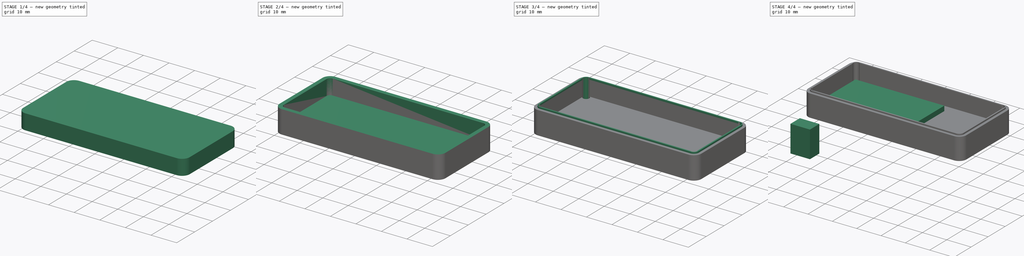
[diagram: build sequence overview — one tinted view per stage of 4, left to right]
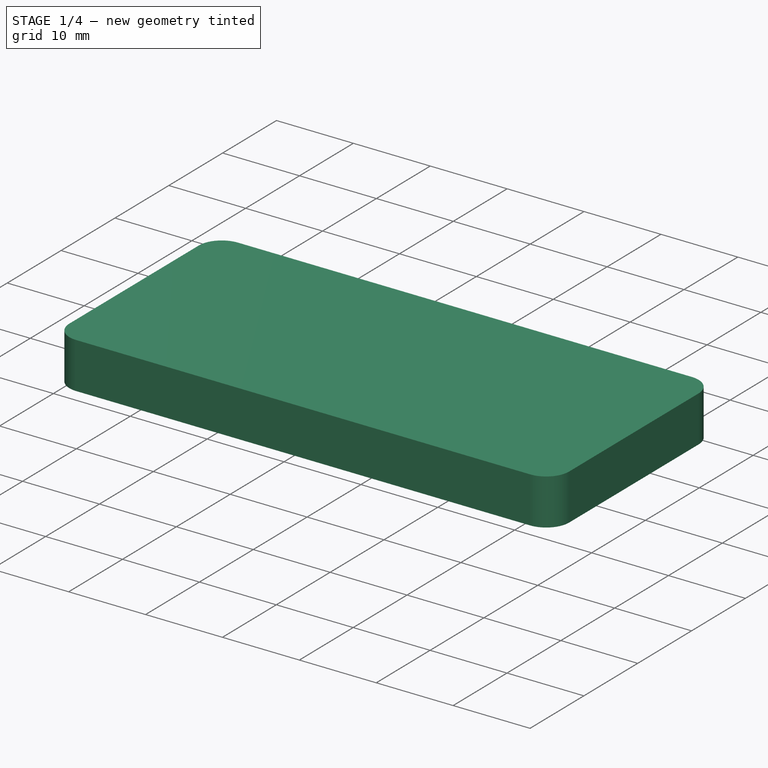
[diagram: stage 1 of 4 — iso view after this stage's code; geometry added in this stage tinted green]
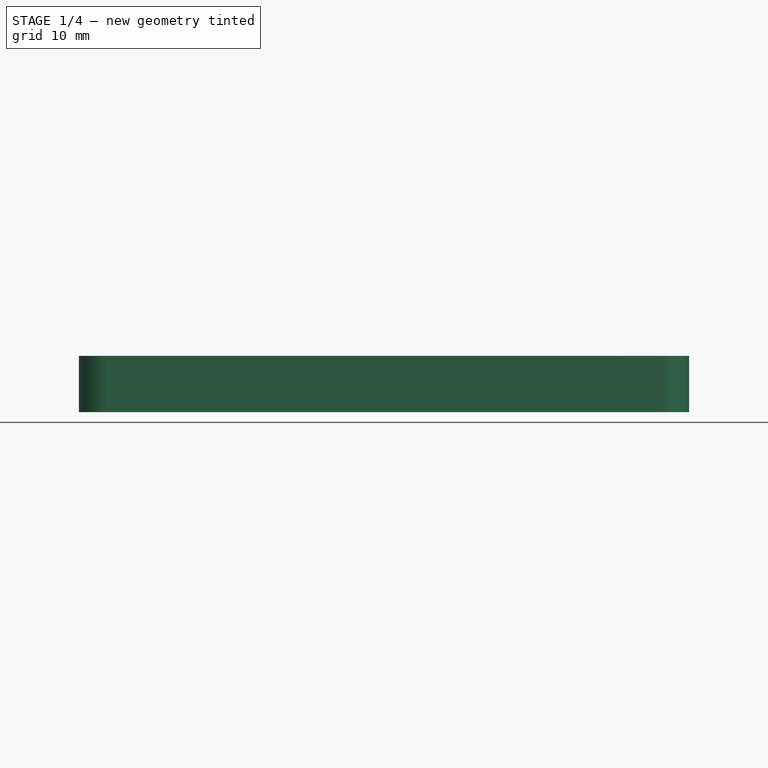
[diagram: stage 1 of 4 — front view after this stage's code; geometry added in this stage tinted green]
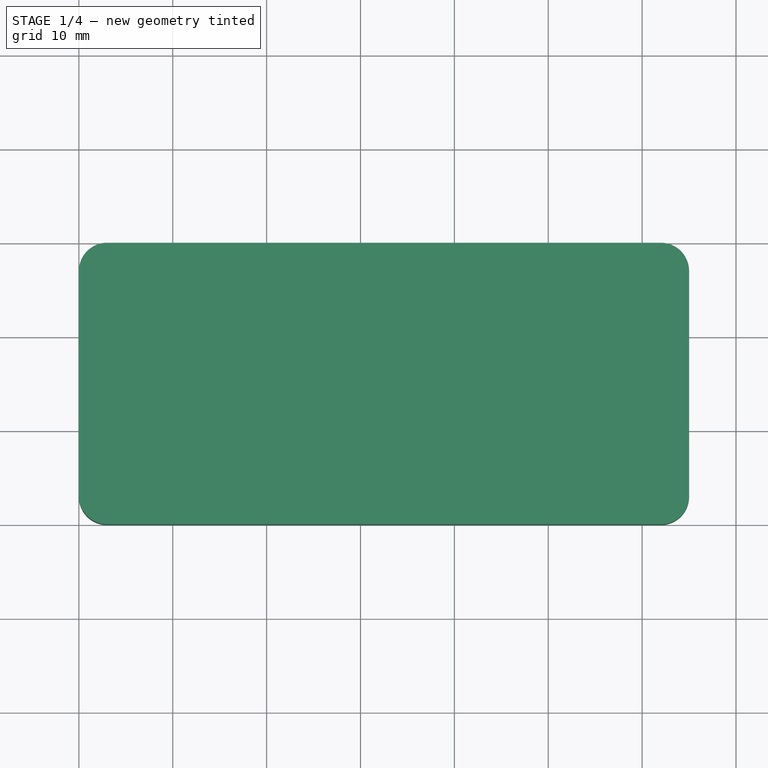
[diagram: stage 1 of 4 — top view after this stage's code; geometry added in this stage tinted green]
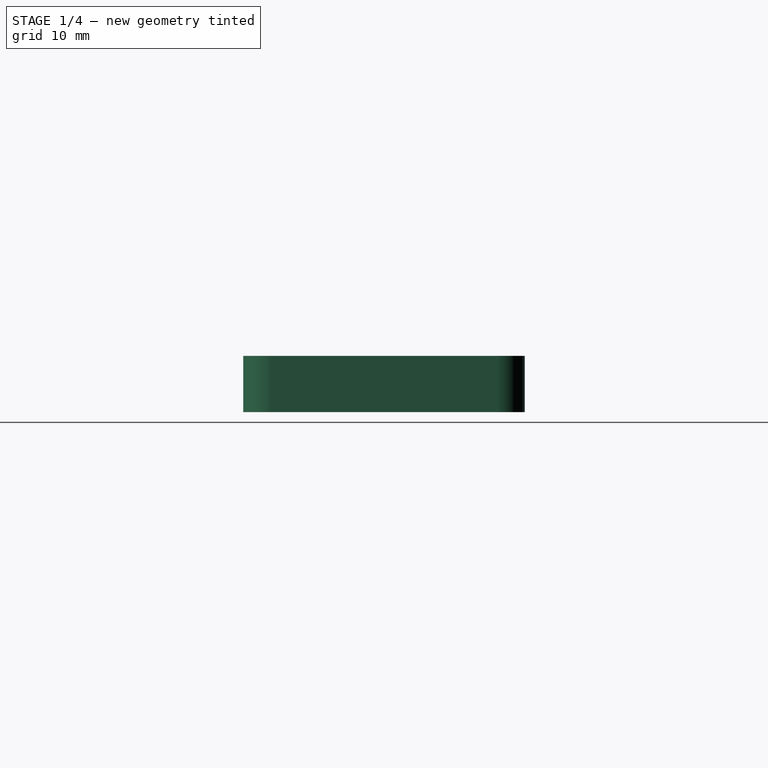
[diagram: stage 1 of 4 — right view after this stage's code; geometry added in this stage tinted green]
FCSTD DOCUMENT  (FreeCAD 1.0R39109 (Git))
Label: pedomet-rs_housing
License: All rights reserved
LicenseURL: http://en.wikipedia.org/wiki/All_rights_reserved
objects: Part::Feature×36, Sketcher::SketchObject×10, App::Part×6, PartDesign::Pad×5, PartDesign::Pocket×5, Part::Box×2, PartDesign::Body×2, PartDesign::ShapeBinder×1
note: 91 computed .brp shape members not serialized (recipe doc carries the construction recipe); baked Part::Feature solids carry a one-line shape summary decoded from their .brp

FEATURE [PartDesign::Pad] Pad
  Direction = (0,0,1)
  Length = 6
  Length2 = 10
  Profile = -> Sketch
  ReferenceAxis = -> Sketch [N_Axis]
  Suppressed = false
  Type = 0
FEATURE [App::Part] XIAO_nRF52840_v15  label="XIAO-nRF52840 v15"
  Group = -> [USB_TYPE_C_PORT,Part__Feature024,SKTAAAE010_v1,PCB__1_,MSM261D3526H1CPM,Box001]
  Origin = -> Origin005
  Placement = pos=(51.2,9,0.8) rot=(1,0,0;1.5708rad)
FEATURE [Sketcher::SketchObject] Sketch001
  ArcFitTolerance = 1e-06
  AttachmentSupport = -> [XY_Plane006]
  ExternalGeometry = -> [Pad]
  FullyConstrained = true
  MakeInternals = false
  MapMode = 5
  sketch-geometry (10):
    g0: LineSegment StartX=1 StartY=27 StartZ=0 EndX=1 EndY=3 EndZ=0
    g1: LineSegment StartX=3 StartY=1 StartZ=0 EndX=62 EndY=1 EndZ=0
    g2: LineSegment StartX=64 StartY=3 StartZ=0 EndX=64 EndY=27 EndZ=0
    g3: LineSegment StartX=62 StartY=29 StartZ=0 EndX=3 EndY=29 EndZ=0
    g4: ArcOfCircle CenterX=3 CenterY=27 CenterZ=0 NormalX=0 NormalY=0 NormalZ=1 AngleXU=0 Radius=2 StartAngle=1.5708 EndAngle=3.14159
    g5: ArcOfCircle CenterX=3 CenterY=3 CenterZ=0 NormalX=0 NormalY=0 NormalZ=1 AngleXU=0 Radius=2 StartAngle=3.14159 EndAngle=4.71239
    g6: ArcOfCircle CenterX=62 CenterY=3 CenterZ=0 NormalX=0 NormalY=0 NormalZ=1 AngleXU=0 Radius=2 StartAngle=4.71239 EndAngle=6.28319
    g7: ArcOfCircle CenterX=62 CenterY=27 CenterZ=0 NormalX=0 NormalY=0 NormalZ=1 AngleXU=0 Radius=2 StartAngle=0 EndAngle=1.5708
    g8: GeomPoint [constr] X=1 Y=29 Z=0
    g9: GeomPoint [constr] X=64 Y=1 Z=0
  constraints (24):
    c: Tangent(g0,g4) = -1.5708
    c: Tangent(g0,g5) = -1.5708
    c: Tangent(g1,g5) = -1.5708
    c: Tangent(g1,g6) = -1.5708
    c: Tangent(g2,g6) = -1.5708
    c: Tangent(g2,g7) = -1.5708
    c: Tangent(g3,g7) = -1.5708
    c: Tangent(g3,g4) = -1.5708
    c: Vertical(g0)
    c: Vertical(g2)
    c: Horizontal(g1)
    c: Horizontal(g3)
    c: Equal(g4,g5)
    c: Equal(g5,g6)
    c: Equal(g6,g7)
    c: PointOnObject(g8,g0)
    c: PointOnObject(g8,g3)
    c: PointOnObject(g9,g1)
    c: PointOnObject(g9,g2)
    c: Radius(g5) = 2
    c: DistanceX(g-3,g0) = 1
    c: DistanceY(g3,g-4) = 1
    c: DistanceX(g2,g-6) = 1
    c: DistanceY(g-5,g1) = 1
FEATURE [PartDesign::Pocket] Pocket
  BaseFeature = -> Pad
  Direction = (0,0,-1)
  Length = 5
  Length2 = 5
  Profile = -> Sketch001
  ReferenceAxis = -> Sketch001 [N_Axis]
  Reversed = true
  Suppressed = false
  Type = 0
FEATURE [Sketcher::SketchObject] Sketch002
  ArcFitTolerance = 1e-06
  AttachmentOffset = pos=(0,0,1) rot=(0,0,1;0rad)
  AttachmentSupport = -> [XY_Plane006]
  FullyConstrained = true
  MakeInternals = false
  MapMode = 5
  Placement = pos=(0,0,1) rot=(0,0,1;0rad)
  sketch-geometry (8):
    g0: Circle CenterX=62.25 CenterY=27.3 CenterZ=0 NormalX=0 NormalY=0 NormalZ=1 AngleXU=0 Radius=2.25
    g1: Circle CenterX=62.25 CenterY=27.3 CenterZ=0 NormalX=0 NormalY=0 NormalZ=1 AngleXU=0 Radius=1.6
    g2: Circle CenterX=2.75 CenterY=27.3 CenterZ=0 NormalX=0 NormalY=0 NormalZ=1 AngleXU=0 Radius=2.25
    g3: Circle CenterX=2.75 CenterY=27.3 CenterZ=0 NormalX=0 NormalY=0 NormalZ=1 AngleXU=0 Radius=1.6
    g4: Circle CenterX=2.75 CenterY=2.7 CenterZ=0 NormalX=0 NormalY=0 NormalZ=1 AngleXU=0 Radius=2.25
    g5: Circle CenterX=2.75 CenterY=2.7 CenterZ=0 NormalX=0 NormalY=0 NormalZ=1 AngleXU=0 Radius=1.6
    g6: Circle CenterX=62.25 CenterY=2.7 CenterZ=0 NormalX=0 NormalY=0 NormalZ=1 AngleXU=0 Radius=2.25
    g7: Circle CenterX=62.25 CenterY=2.7 CenterZ=0 NormalX=0 NormalY=0 NormalZ=1 AngleXU=0 Radius=1.6
  constraints (20):
    c: Diameter(g0) = 4.5
    c: Coincident(g1,g0)
    c: Diameter(g1) = 3.2
    c: Diameter(g2) = 4.5
    c: Coincident(g3,g2)
    c: Diameter(g3) = 3.2
    c: Diameter(g4) = 4.5
    c: Coincident(g5,g4)
    c: Diameter(g5) = 3.2
    c: Diameter(g6) = 4.5
    c: Coincident(g7,g6)
    c: Diameter(g7) = 3.2
    c: DistanceY(g2,g0) = 0
    c: DistanceX(g4,g2) = 0
    c: DistanceY(g4,g6) = 0
    c: DistanceX(g6,g0) = 0
    c: DistanceX(g2,g0) = 59.5
    c: DistanceY(g4,g2) = 24.6
    c: DistanceY(g-1,g4) = 2.7
    c: DistanceX(g-1,g4) = 2.75
FEATURE [PartDesign::Pad] Pad001
  BaseFeature = -> Pocket
  Direction = (0,0,1)
  Length = 4
  Length2 = 10
  Profile = -> Sketch002
  ReferenceAxis = -> Sketch002 [N_Axis]
  Suppressed = false
  Type = 0
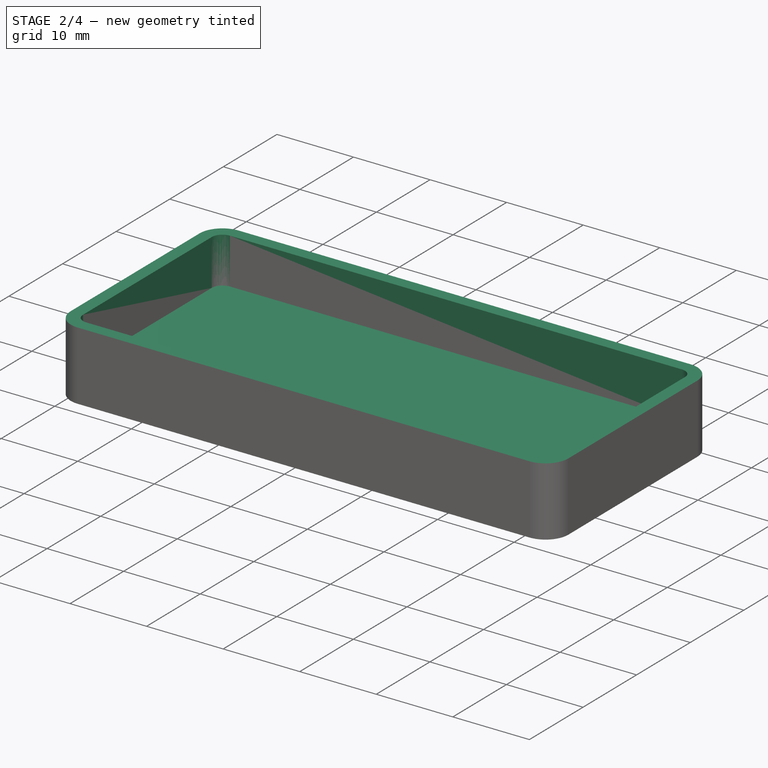
[diagram: stage 2 of 4 — iso view after this stage's code; geometry added in this stage tinted green]
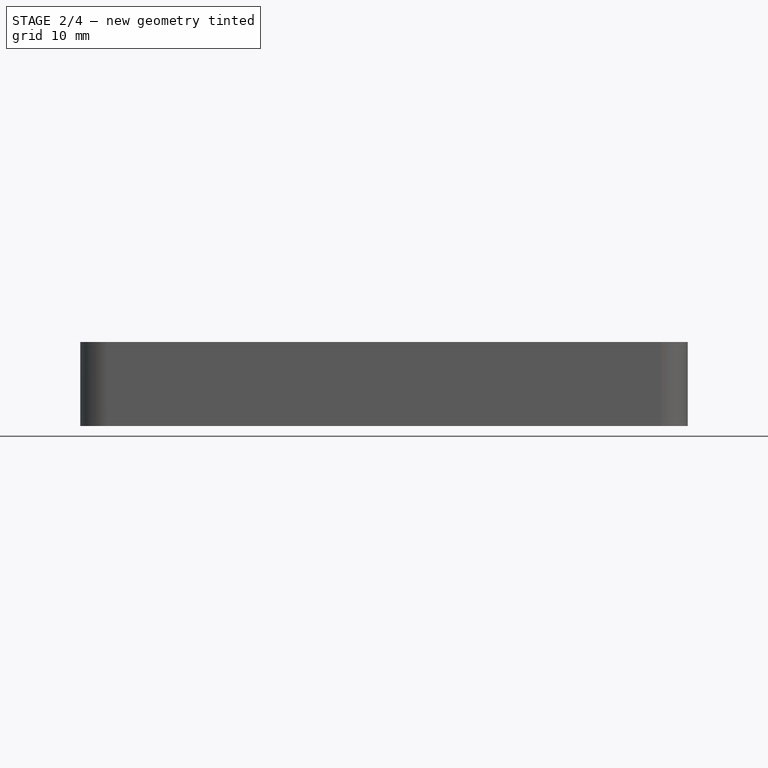
[diagram: stage 2 of 4 — front view after this stage's code; geometry added in this stage tinted green]
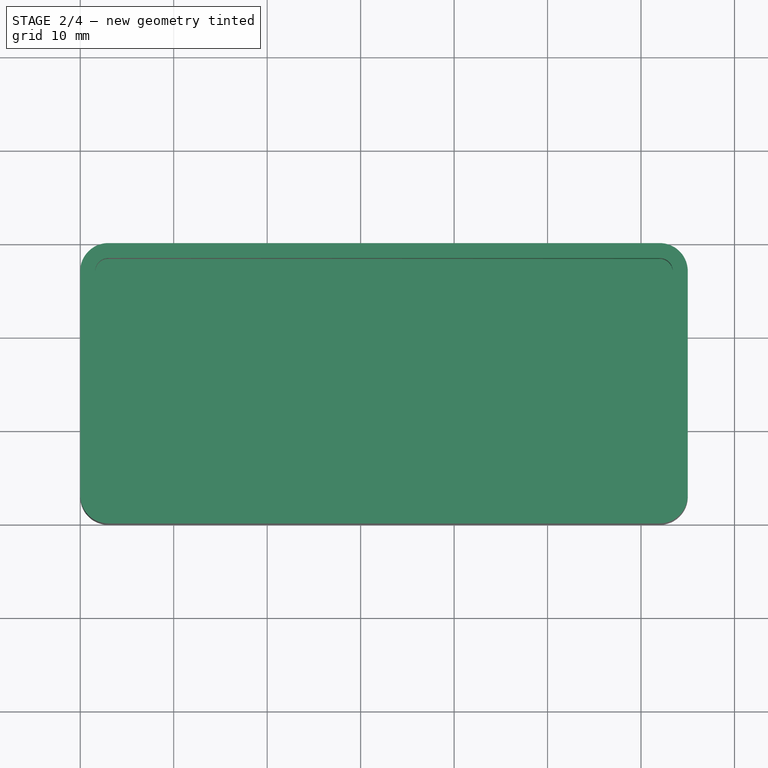
[diagram: stage 2 of 4 — top view after this stage's code; geometry added in this stage tinted green]
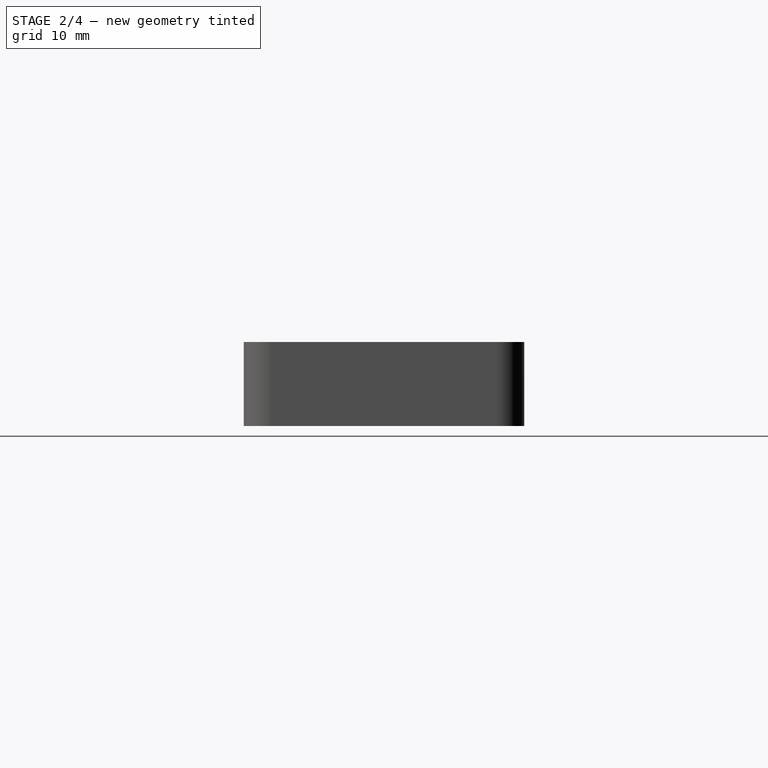
[diagram: stage 2 of 4 — right view after this stage's code; geometry added in this stage tinted green]
FEATURE [Sketcher::SketchObject] Sketch003
  ArcFitTolerance = 1e-06
  AttachmentOffset = pos=(0,0,70) rot=(0,0,1;0rad)
  AttachmentSupport = -> [YZ_Plane006]
  FullyConstrained = true
  MakeInternals = false
  MapMode = 5
  Placement = pos=(70,0,0) rot=(0.57735,0.57735,0.57735;2.0944rad)
  sketch-geometry (10):
    g0: LineSegment StartX=10.57 StartY=3.9 StartZ=0 EndX=10.57 EndY=2.75 EndZ=0
    g1: LineSegment StartX=11.67 StartY=1.65 StartZ=0 EndX=18.57 EndY=1.65 EndZ=0
    g2: LineSegment StartX=19.67 StartY=2.75 StartZ=0 EndX=19.67 EndY=3.9 EndZ=0
    g3: LineSegment StartX=18.57 StartY=5 StartZ=0 EndX=11.67 EndY=5 EndZ=0
    g4: ArcOfCircle CenterX=11.67 CenterY=3.9 CenterZ=0 NormalX=0 NormalY=0 NormalZ=1 AngleXU=0 Radius=1.1 StartAngle=1.5708 EndAngle=3.14159
    g5: ArcOfCircle CenterX=11.67 CenterY=2.75 CenterZ=0 NormalX=0 NormalY=0 NormalZ=1 AngleXU=0 Radius=1.1 StartAngle=3.14159 EndAngle=4.71239
    g6: ArcOfCircle CenterX=18.57 CenterY=2.75 CenterZ=0 NormalX=0 NormalY=0 NormalZ=1 AngleXU=0 Radius=1.1 StartAngle=4.71239 EndAngle=6.28319
    g7: ArcOfCircle CenterX=18.57 CenterY=3.9 CenterZ=0 NormalX=0 NormalY=0 NormalZ=1 AngleXU=0 Radius=1.1 StartAngle=1e-16 EndAngle=1.5708
    g8: GeomPoint [constr] X=10.57 Y=5 Z=0
    g9: GeomPoint [constr] X=19.67 Y=1.65 Z=0
  constraints (24):
    c: Tangent(g0,g4) = -1.5708
    c: Tangent(g0,g5) = -1.5708
    c: Tangent(g1,g5) = -1.5708
    c: Tangent(g1,g6) = -1.5708
    c: Tangent(g2,g6) = -1.5708
    c: Tangent(g2,g7) = -1.5708
    c: Tangent(g3,g7) = -1.5708
    c: Tangent(g3,g4) = -1.5708
    c: Vertical(g0)
    c: Vertical(g2)
    c: Horizontal(g1)
    c: Horizontal(g3)
    c: Equal(g4,g5)
    c: Equal(g5,g6)
    c: Equal(g6,g7)
    c: PointOnObject(g8,g0)
    c: PointOnObject(g8,g3)
    c: PointOnObject(g9,g1)
    c: PointOnObject(g9,g2)
    c: DistanceX(g-1,g0) = 10.57
    c: DistanceX(g0,g2) = 9.1
    c: DistanceY(g1,g3) = 3.35
    c: DistanceY(g-1,g1) = 1.65
    c: DistanceX(g7,g2) = 1.1
FEATURE [PartDesign::Pocket] Pocket001
  BaseFeature = -> Pad001
  Direction = (-1,0,0)
  Length = 10
  Length2 = 5
  Profile = -> Sketch003
  ReferenceAxis = -> Sketch003 [N_Axis]
  Suppressed = false
  Type = 0
FEATURE [PartDesign::Body] Body  label="Top"
  AllowCompound = false
  Group = -> [Sketch,Pad,Sketch001,Pocket,Sketch002,Pad001,Sketch003,Pocket001]
  Origin = -> Origin006
  Tip = -> Pocket001
FEATURE [PartDesign::ShapeBinder] ShapeBinder
  Support = -> [Body]
  TraceSupport = false
FEATURE [Sketcher::SketchObject] Sketch004
  ArcFitTolerance = 1e-06
  AttachmentSupport = -> [XY_Plane007]
  ExternalGeometry = -> [ShapeBinder]
  FullyConstrained = true
  MakeInternals = false
  MapMode = 5
  sketch-geometry (10):
    g0: LineSegment StartX=0 StartY=27 StartZ=0 EndX=0 EndY=3 EndZ=0
    g1: LineSegment StartX=3 StartY=0 StartZ=0 EndX=62 EndY=0 EndZ=0
    g2: LineSegment StartX=65 StartY=3 StartZ=0 EndX=65 EndY=27 EndZ=0
    g3: LineSegment StartX=62 StartY=30 StartZ=0 EndX=3 EndY=30 EndZ=0
    g4: ArcOfCircle CenterX=3 CenterY=27 CenterZ=0 NormalX=0 NormalY=0 NormalZ=1 AngleXU=0 Radius=3 StartAngle=1.5708 EndAngle=3.14159
    g5: ArcOfCircle CenterX=3 CenterY=3 CenterZ=0 NormalX=0 NormalY=0 NormalZ=1 AngleXU=0 Radius=3 StartAngle=3.14159 EndAngle=4.71239
    g6: ArcOfCircle CenterX=62 CenterY=3 CenterZ=0 NormalX=0 NormalY=0 NormalZ=1 AngleXU=0 Radius=3 StartAngle=4.71239 EndAngle=6.28319
    g7: ArcOfCircle CenterX=62 CenterY=27 CenterZ=0 NormalX=0 NormalY=0 NormalZ=1 AngleXU=0 Radius=3 StartAngle=5e-16 EndAngle=1.5708
    g8: GeomPoint [constr] X=0 Y=30 Z=0
    g9: GeomPoint [constr] X=65 Y=0 Z=0
  constraints (21):
    c: Tangent(g0,g4) = -1.5708
    c: Tangent(g0,g5) = -1.5708
    c: Tangent(g1,g5) = -1.5708
    c: Tangent(g1,g6) = -1.5708
    c: Tangent(g2,g6) = -1.5708
    c: Tangent(g2,g7) = -1.5708
    c: Tangent(g3,g7) = -1.5708
    c: Tangent(g3,g4) = -1.5708
    c: Vertical(g0)
    c: Vertical(g2)
    c: Horizontal(g1)
    c: Horizontal(g3)
    c: Equal(g5,g6)
    c: Equal(g6,g7)
    c: PointOnObject(g8,g0)
    c: PointOnObject(g8,g3)
    c: PointOnObject(g9,g1)
    c: PointOnObject(g9,g2)
    c: Coincident(g3,g-3)
    c: Coincident(g2,g-4)
    c: Coincident(g1,g-5)
FEATURE [PartDesign::Pad] Pad002
  Direction = (0,0,1)
  Length = 9
  Length2 = 10
  Profile = -> Sketch004
  ReferenceAxis = -> Sketch004 [N_Axis]
  Suppressed = false
  Type = 0
FEATURE [Sketcher::SketchObject] Sketch005
  ArcFitTolerance = 1e-06
  AttachmentOffset = pos=(0,0,9) rot=(0,0,1;0rad)
  AttachmentSupport = -> [XY_Plane007]
  ExternalGeometry = -> [ShapeBinder]
  FullyConstrained = true
  MakeInternals = false
  MapMode = 5
  Placement = pos=(0,0,9) rot=(0,0,1;0rad)
  sketch-geometry (10):
    g0: LineSegment StartX=1.6 StartY=27 StartZ=0 EndX=1.6 EndY=3 EndZ=0
    g1: LineSegment StartX=3 StartY=1.6 StartZ=0 EndX=62 EndY=1.6 EndZ=0
    g2: LineSegment StartX=63.4 StartY=3 StartZ=0 EndX=63.4 EndY=27 EndZ=0
    g3: LineSegment StartX=62 StartY=28.4 StartZ=0 EndX=3 EndY=28.4 EndZ=0
    g4: ArcOfCircle CenterX=3 CenterY=27 CenterZ=0 NormalX=0 NormalY=0 NormalZ=1 AngleXU=0 Radius=1.4 StartAngle=1.5708 EndAngle=3.14159
    g5: ArcOfCircle CenterX=3 CenterY=3 CenterZ=0 NormalX=0 NormalY=0 NormalZ=1 AngleXU=0 Radius=1.4 StartAngle=3.14159 EndAngle=4.71239
    g6: ArcOfCircle CenterX=62 CenterY=3 CenterZ=0 NormalX=0 NormalY=0 NormalZ=1 AngleXU=0 Radius=1.4 StartAngle=4.71239 EndAngle=6.28319
    g7: ArcOfCircle CenterX=62 CenterY=27 CenterZ=0 NormalX=0 NormalY=0 NormalZ=1 AngleXU=0 Radius=1.4 StartAngle=-9e-16 EndAngle=1.5708
    g8: GeomPoint [constr] X=1.6 Y=28.4 Z=0
    g9: GeomPoint [constr] X=63.4 Y=1.6 Z=0
  constraints (24):
    c: Tangent(g0,g4) = -1.5708
    c: Tangent(g0,g5) = -1.5708
    c: Tangent(g1,g5) = -1.5708
    c: Tangent(g1,g6) = -1.5708
    c: Tangent(g2,g6) = -1.5708
    c: Tangent(g2,g7) = -1.5708
    c: Tangent(g3,g7) = -1.5708
    c: Tangent(g3,g4) = -1.5708
    c: Vertical(g0)
    c: Vertical(g2)
    c: Horizontal(g1)
    c: Horizontal(g3)
    c: Equal(g4,g5)
    c: Equal(g5,g6)
    c: Equal(g6,g7)
    c: PointOnObject(g8,g0)
    c: PointOnObject(g8,g3)
    c: PointOnObject(g9,g1)
    c: PointOnObject(g9,g2)
    c: DistanceX(g-3,g3) = 0
    c: DistanceY(g3,g-3) = 0.6
    c: DistanceY(g-5,g0) = 0
    c: DistanceY(g-6,g2) = 0
    c: DistanceX(g2,g-6) = 0.6
FEATURE [PartDesign::Pocket] Pocket002
  BaseFeature = -> Pad002
  Direction = (0,0,-1)
  Length = 6
  Length2 = 5
  Profile = -> Sketch005
  ReferenceAxis = -> Sketch005 [N_Axis]
  Suppressed = false
  Type = 0
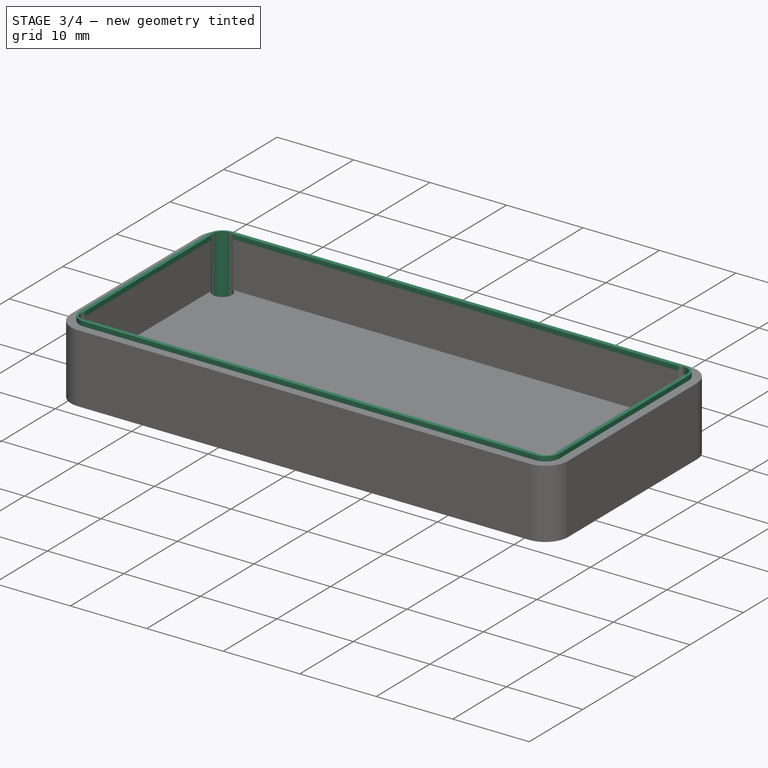
[diagram: stage 3 of 4 — iso view after this stage's code; geometry added in this stage tinted green]
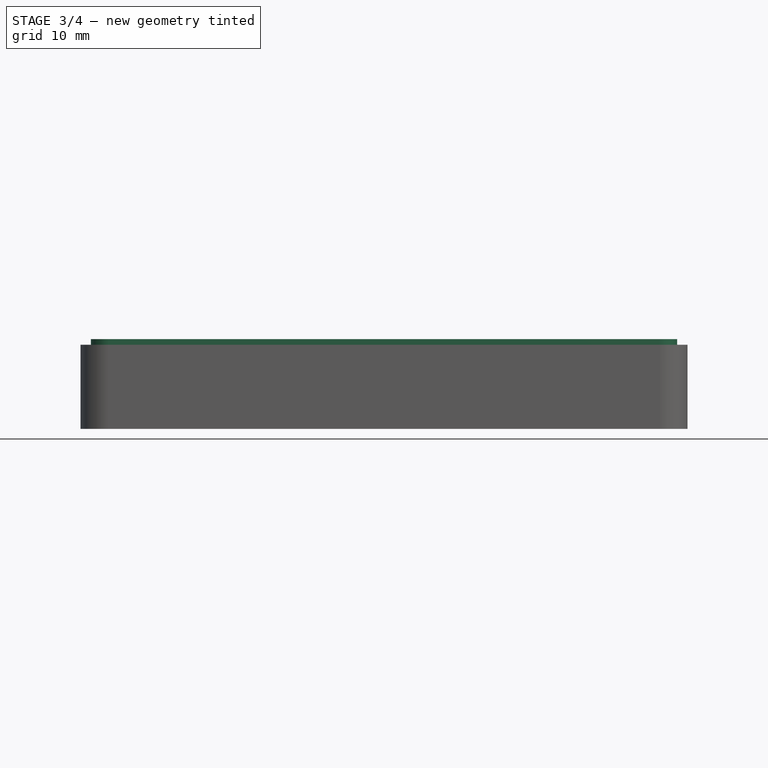
[diagram: stage 3 of 4 — front view after this stage's code; geometry added in this stage tinted green]
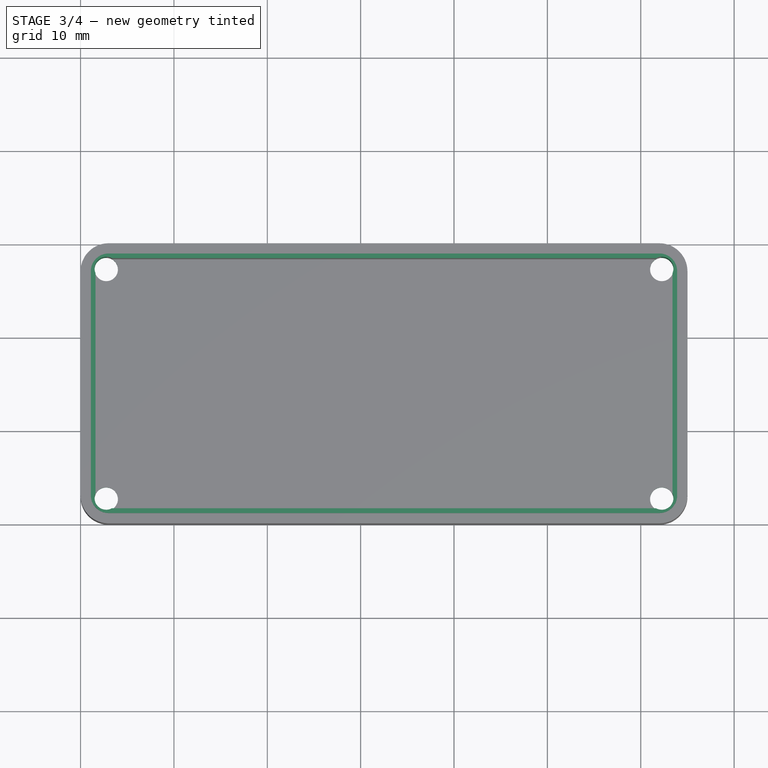
[diagram: stage 3 of 4 — top view after this stage's code; geometry added in this stage tinted green]
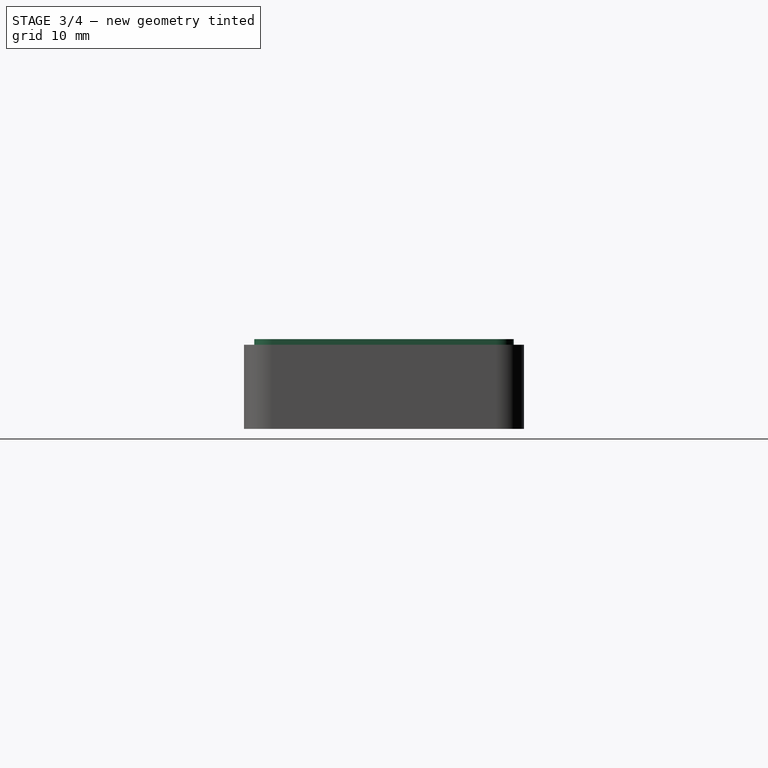
[diagram: stage 3 of 4 — right view after this stage's code; geometry added in this stage tinted green]
FEATURE [Sketcher::SketchObject] Sketch006
  ArcFitTolerance = 1e-06
  AttachmentOffset = pos=(0,0,9) rot=(0,0,1;0rad)
  AttachmentSupport = -> [XY_Plane007]
  FullyConstrained = true
  MakeInternals = false
  MapMode = 5
  Placement = pos=(0,0,9) rot=(0,0,1;0rad)
  sketch-geometry (18):
    g0: LineSegment StartX=1.1 StartY=27 StartZ=0 EndX=1.1 EndY=3 EndZ=0
    g1: LineSegment StartX=3 StartY=1.1 StartZ=0 EndX=62 EndY=1.1 EndZ=0
    g2: LineSegment StartX=63.9 StartY=3 StartZ=0 EndX=63.9 EndY=27 EndZ=0
    g3: LineSegment StartX=62 StartY=28.9 StartZ=0 EndX=3 EndY=28.9 EndZ=0
    g4: ArcOfCircle CenterX=3 CenterY=27 CenterZ=0 NormalX=0 NormalY=0 NormalZ=1 AngleXU=0 Radius=1.9 StartAngle=1.5708 EndAngle=3.14159
    g5: ArcOfCircle CenterX=3 CenterY=3 CenterZ=0 NormalX=0 NormalY=0 NormalZ=1 AngleXU=0 Radius=1.9 StartAngle=3.14159 EndAngle=4.71239
    g6: ArcOfCircle CenterX=62 CenterY=3 CenterZ=0 NormalX=0 NormalY=0 NormalZ=1 AngleXU=0 Radius=1.9 StartAngle=4.71239 EndAngle=6.28319
    g7: ArcOfCircle CenterX=62 CenterY=27 CenterZ=0 NormalX=0 NormalY=0 NormalZ=1 AngleXU=0 Radius=1.9 StartAngle=0 EndAngle=1.5708
    g8: LineSegment StartX=1.6 StartY=27 StartZ=0 EndX=1.6 EndY=3 EndZ=0
    g9: LineSegment StartX=3 StartY=1.6 StartZ=0 EndX=62 EndY=1.6 EndZ=0
    g10: LineSegment StartX=63.4 StartY=3 StartZ=0 EndX=63.4 EndY=27 EndZ=0
    g11: LineSegment StartX=62 StartY=28.4 StartZ=0 EndX=3 EndY=28.4 EndZ=0
    g12: ArcOfCircle CenterX=3 CenterY=27 CenterZ=0 NormalX=0 NormalY=0 NormalZ=1 AngleXU=0 Radius=1.4 StartAngle=1.5708 EndAngle=3.14159
    g13: ArcOfCircle CenterX=3 CenterY=3 CenterZ=0 NormalX=0 NormalY=0 NormalZ=1 AngleXU=0 Radius=1.4 StartAngle=3.14159 EndAngle=4.71239
    g14: ArcOfCircle CenterX=62 CenterY=3 CenterZ=0 NormalX=0 NormalY=0 NormalZ=1 AngleXU=0 Radius=1.4 StartAngle=4.71239 EndAngle=6.28319
    g15: ArcOfCircle CenterX=62 CenterY=27 CenterZ=0 NormalX=0 NormalY=0 NormalZ=1 AngleXU=0 Radius=1.4 StartAngle=-2.7e-15 EndAngle=1.5708
    g16: GeomPoint [constr] X=1.1 Y=28.9 Z=0
    g17: GeomPoint [constr] X=63.9 Y=1.1 Z=0
  constraints (36):
    c: Tangent(g0,g4) = -1.5708
    c: Tangent(g0,g5) = -1.5708
    c: Tangent(g1,g5) = -1.5708
    c: Tangent(g1,g6) = -1.5708
    c: Tangent(g2,g6) = -1.5708
    c: Tangent(g2,g7) = -1.5708
    c: Tangent(g3,g7) = -1.5708
    c: Tangent(g3,g4) = -1.5708
    c: Vertical(g0)
    c: Vertical(g2)
    c: Horizontal(g1)
    c: Horizontal(g3)
    c: Equal(g4,g5)
    c: Equal(g5,g6)
    c: Equal(g6,g7)
    c: Tangent(g8,g12) = -1.5708
    c: Tangent(g8,g13) = -1.5708
    c: Tangent(g9,g13) = -1.5708
    c: Tangent(g9,g14) = -1.5708
    c: Tangent(g10,g14) = -1.5708
    c: Tangent(g10,g15) = -1.5708
    c: Tangent(g11,g15) = -1.5708
    c: Tangent(g11,g12) = -1.5708
    c: Coincident(g4,g12)
    c: Coincident(g5,g13)
    c: Coincident(g6,g14)
    c: Coincident(g7,g15)
    c: PointOnObject(g16,g0)
    c: PointOnObject(g16,g3)
    c: PointOnObject(g17,g1)
    c: PointOnObject(g17,g2)
    c: Coincident(g11,g-3)
    c: Coincident(g11,g-3)
    c: Coincident(g10,g-4)
    c: Coincident(g9,g-5)
    c: DistanceY(g11,g3) = 0.5
FEATURE [PartDesign::Pad] Pad003
  BaseFeature = -> Pocket002
  Direction = (0,0,1)
  Length = 0.6
  Length2 = 10
  Profile = -> Sketch006
  ReferenceAxis = -> Sketch006 [N_Axis]
  Suppressed = false
  Type = 0
FEATURE [Sketcher::SketchObject] Sketch007
  ArcFitTolerance = 1e-06
  AttachmentSupport = -> [XY_Plane007]
  ExternalGeometry = -> [ShapeBinder]
  FullyConstrained = true
  MakeInternals = false
  MapMode = 5
  sketch-geometry (4):
    g0: Circle CenterX=2.75 CenterY=27.3 CenterZ=0 NormalX=0 NormalY=0 NormalZ=1 AngleXU=0 Radius=2
    g1: Circle CenterX=62.25 CenterY=27.3 CenterZ=0 NormalX=0 NormalY=0 NormalZ=1 AngleXU=0 Radius=2
    g2: Circle CenterX=62.25 CenterY=2.7 CenterZ=0 NormalX=0 NormalY=0 NormalZ=1 AngleXU=0 Radius=2
    g3: Circle CenterX=2.75 CenterY=2.7 CenterZ=0 NormalX=0 NormalY=0 NormalZ=1 AngleXU=0 Radius=2
  constraints (8):
    c: Coincident(g1,g-4)
    c: Coincident(g2,g-5)
    c: Coincident(g3,g-6)
    c: Diameter(g0) = 4
    c: Diameter(g1) = 4
    c: Diameter(g2) = 4
    c: Diameter(g3) = 4
    c: Coincident(g0,g-3)
FEATURE [PartDesign::Pocket] Pocket003
  BaseFeature = -> Pad003
  Direction = (0,0,-1)
  Length = 2
  Length2 = 5
  Profile = -> Sketch007
  ReferenceAxis = -> Sketch007 [N_Axis]
  Reversed = true
  Suppressed = false
  Type = 0
FEATURE [Sketcher::SketchObject] Sketch008
  ArcFitTolerance = 1e-06
  AttachmentSupport = -> [XY_Plane007]
  ExternalGeometry = -> [Pocket003]
  FullyConstrained = true
  MakeInternals = false
  MapMode = 5
  sketch-geometry (4):
    g0: Circle CenterX=2.75 CenterY=27.3 CenterZ=0 NormalX=0 NormalY=0 NormalZ=1 AngleXU=0 Radius=1.25
    g1: Circle CenterX=62.25 CenterY=27.3 CenterZ=0 NormalX=0 NormalY=0 NormalZ=1 AngleXU=0 Radius=1.25
    g2: Circle CenterX=2.75 CenterY=2.7 CenterZ=0 NormalX=0 NormalY=0 NormalZ=1 AngleXU=0 Radius=1.25
    g3: Circle CenterX=62.25 CenterY=2.7 CenterZ=0 NormalX=0 NormalY=0 NormalZ=1 AngleXU=0 Radius=1.25
  constraints (8):
    c: Coincident(g0,g-4)
    c: Coincident(g1,g-3)
    c: Coincident(g2,g-5)
    c: Coincident(g3,g-6)
    c: Diameter(g0) = 2.5
    c: Diameter(g1) = 2.5
    c: Diameter(g3) = 2.5
    c: Diameter(g2) = 2.5
FEATURE [PartDesign::Pocket] Pocket004
  BaseFeature = -> Pocket003
  Direction = (0,0,-1)
  Length = 10
  Length2 = 5
  Profile = -> Sketch008
  ReferenceAxis = -> Sketch008 [N_Axis]
  Reversed = true
  Suppressed = false
  Type = 0
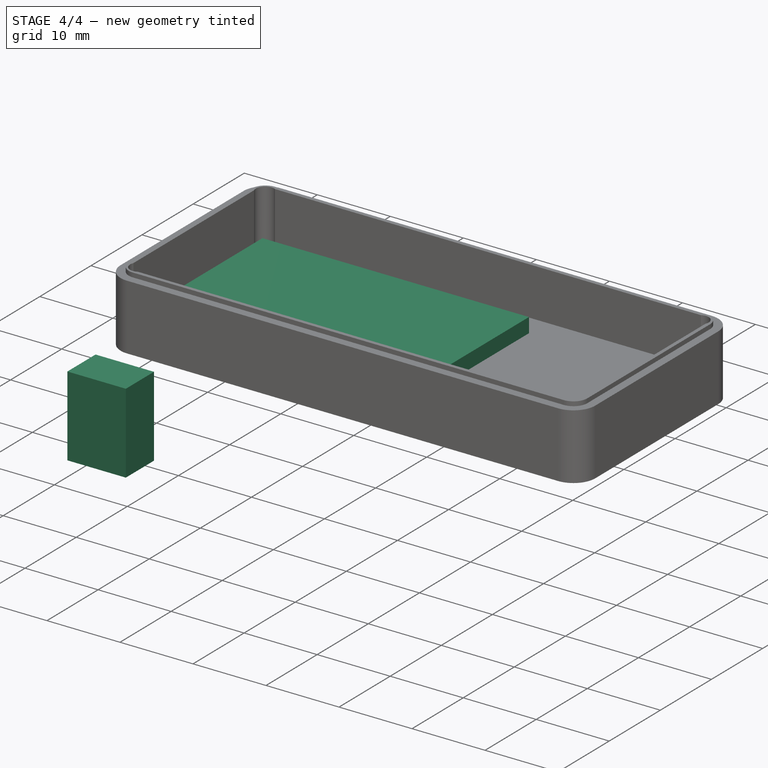
[diagram: stage 4 of 4 — iso view after this stage's code; geometry added in this stage tinted green]
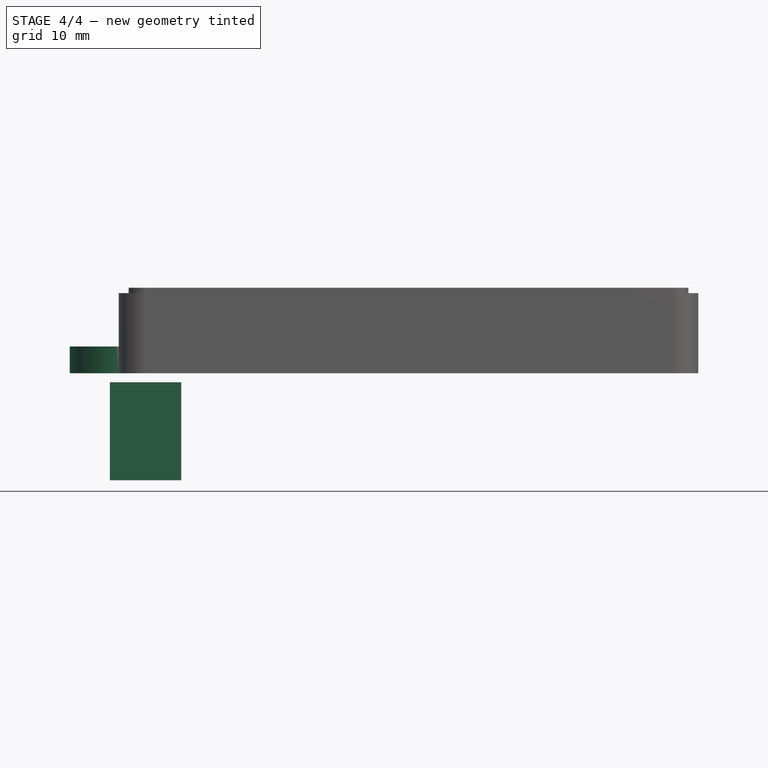
[diagram: stage 4 of 4 — front view after this stage's code; geometry added in this stage tinted green]
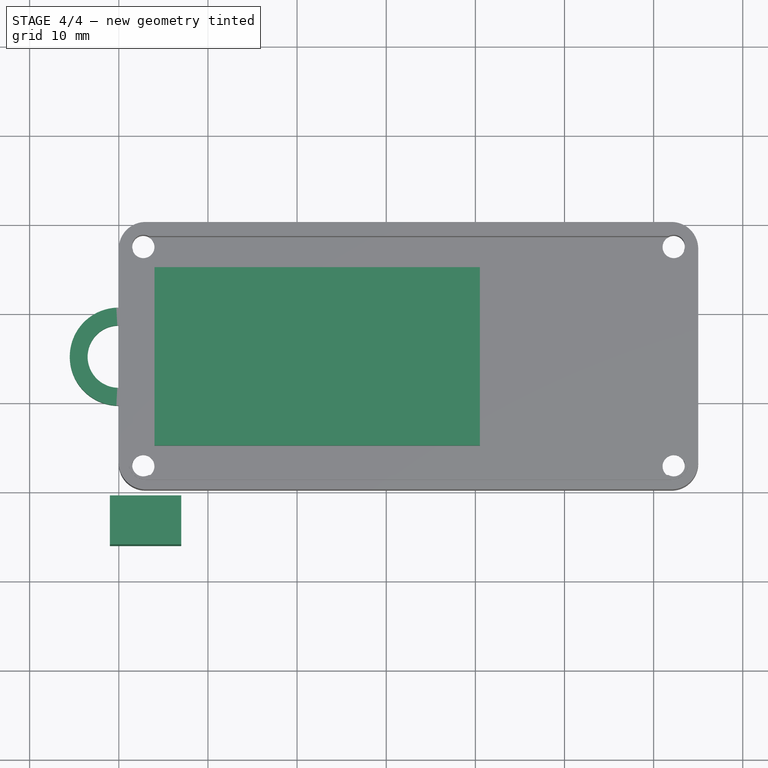
[diagram: stage 4 of 4 — top view after this stage's code; geometry added in this stage tinted green]
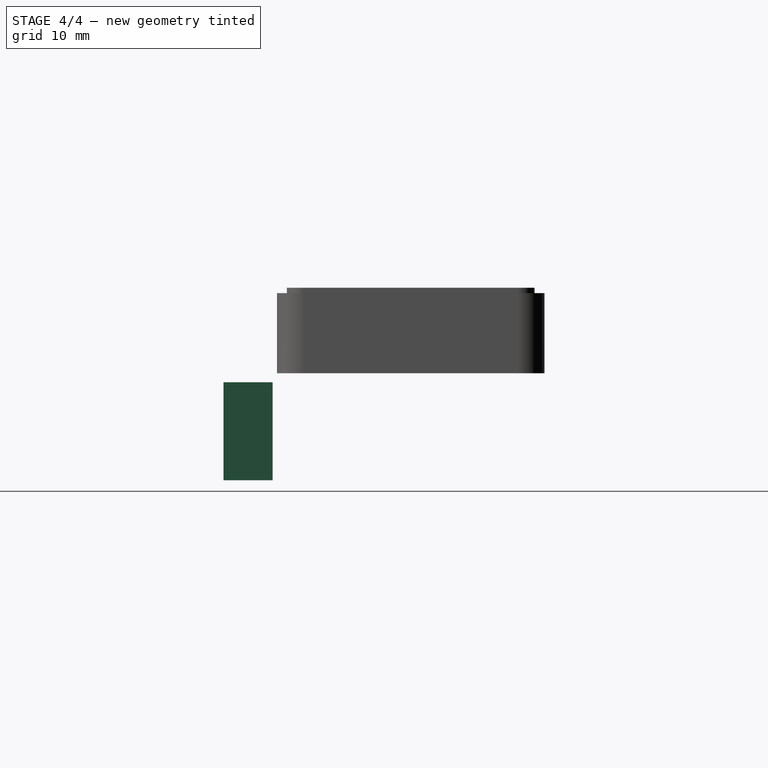
[diagram: stage 4 of 4 — right view after this stage's code; geometry added in this stage tinted green]
FEATURE [Part::Feature] Part__Feature  label="BOSS-EXTRUDE14_8_"
  Placement = pos=(-3.0192,1.09628,5.395) rot=(0,0,1;0rad)
  shape: bbox 0.6 x 1 x 0.3 mm, 6 faces (baked)
FEATURE [Part::Feature] Part__Feature001  label="BOSS-EXTRUDE7_4_"
  Placement = pos=(-3.0192,1.09628,5.395) rot=(0,0,1;0rad)
  shape: bbox 0.3 x 3.784 x 0.75 mm, 6 faces (baked)
FEATURE [Part::Feature] Part__Feature002  label="BOSS-EXTRUDE7_3_"
  Placement = pos=(-3.0192,1.09628,5.395) rot=(0,0,1;0rad)
  shape: bbox 0.3 x 3.784 x 0.75 mm, 6 faces (baked)
FEATURE [Part::Feature] Part__Feature003  label="BOSS-EXTRUDE14_4_"
  Placement = pos=(-3.0192,1.09628,5.395) rot=(0,0,1;0rad)
  shape: bbox 0.3 x 1 x 0.3 mm, 6 faces (baked)
FEATURE [Part::Feature] Part__Feature004  label="BOSS-EXTRUDE14_2_"
  Placement = pos=(-3.0192,1.09628,5.395) rot=(0,0,1;0rad)
  shape: bbox 0.6 x 1 x 0.3 mm, 6 faces (baked)
FEATURE [Part::Feature] Part__Feature005  label="BOSS-EXTRUDE14_11_"
  Placement = pos=(-3.0192,1.09628,5.395) rot=(0,0,1;0rad)
  shape: bbox 0.3 x 1 x 0.3 mm, 6 faces (baked)
FEATURE [Part::Feature] Part__Feature006  label="BOSS-EXTRUDE7_7_"
  Placement = pos=(-3.0192,1.09628,5.395) rot=(0,0,1;0rad)
  shape: bbox 0.3 x 3.784 x 0.75 mm, 6 faces (baked)
FEATURE [Part::Feature] Part__Feature007  label="BOSS-EXTRUDE14_9_"
  Placement = pos=(-3.0192,1.09628,5.395) rot=(0,0,1;0rad)
  shape: bbox 0.3 x 1 x 0.3 mm, 6 faces (baked)
FEATURE [Part::Feature] Part__Feature008  label="BOSS-EXTRUDE14_3_"
  Placement = pos=(-3.0192,1.09628,5.395) rot=(0,0,1;0rad)
  shape: bbox 0.3 x 1 x 0.3 mm, 6 faces (baked)
FEATURE [Part::Feature] Part__Feature009  label="BOSS-EXTRUDE14_7_"
  Placement = pos=(-3.0192,1.09628,5.395) rot=(0,0,1;0rad)
  shape: bbox 0.6 x 1 x 0.3 mm, 6 faces (baked)
FEATURE [Part::Feature] Part__Feature010  label="MIRROR2"
  Placement = pos=(-3.0192,1.09628,5.395) rot=(0,0,1;0rad)
  shape: bbox 6.7 x 4.6 x 0.7 mm, 26 faces (baked)
FEATURE [Part::Feature] Part__Feature011  label="BOSS-EXTRUDE14_5_"
  Placement = pos=(-3.0192,1.09628,5.395) rot=(0,0,1;0rad)
  shape: bbox 0.3 x 1 x 0.3 mm, 6 faces (baked)
FEATURE [Part::Feature] Part__Feature012  label="BOSS-EXTRUDE14_12_"
  Placement = pos=(-3.0192,1.09628,5.395) rot=(0,0,1;0rad)
  shape: bbox 0.3 x 1 x 0.3 mm, 6 faces (baked)
FEATURE [Part::Feature] Part__Feature013  label="BOSS-EXTRUDE7_8_"
  Placement = pos=(-3.0192,1.09628,5.395) rot=(0,0,1;0rad)
  shape: bbox 0.3 x 3.784 x 0.75 mm, 6 faces (baked)
FEATURE [Part::Feature] Part__Feature014  label="BOSS-EXTRUDE7_1_"
  Placement = pos=(-3.0192,1.09628,5.395) rot=(0,0,1;0rad)
  shape: bbox 0.3 x 3.784 x 0.75 mm, 6 faces (baked)
FEATURE [Part::Feature] Part__Feature015  label="BOSS-EXTRUDE14_10_"
  Placement = pos=(-3.0192,1.09628,5.395) rot=(0,0,1;0rad)
  shape: bbox 0.3 x 1 x 0.3 mm, 6 faces (baked)
FEATURE [Part::Feature] Part__Feature016  label="BOSS-EXTRUDE7_9_"
  Placement = pos=(-3.0192,1.09628,5.395) rot=(0,0,1;0rad)
  shape: bbox 0.3 x 3.784 x 0.75 mm, 6 faces (baked)
FEATURE [Part::Feature] Part__Feature017  label="BOSS-EXTRUDE14_6_"
  Placement = pos=(-3.0192,1.09628,5.395) rot=(0,0,1;0rad)
  shape: bbox 0.6 x 1 x 0.3 mm, 6 faces (baked)
FEATURE [Part::Feature] Part__Feature018  label="CHAMFER9"
  Placement = pos=(-3.0192,1.09628,5.395) rot=(0,0,1;0rad)
  shape: bbox 8.94 x 7.3 x 4.2 mm, 103 faces (baked)
FEATURE [Part::Feature] Part__Feature019  label="BOSS-EXTRUDE14_1_"
  Placement = pos=(-3.0192,1.09628,5.395) rot=(0,0,1;0rad)
  shape: bbox 0.3 x 1 x 0.3 mm, 6 faces (baked)
FEATURE [Part::Feature] Part__Feature020  label="BOSS-EXTRUDE7_6_"
  Placement = pos=(-3.0192,1.09628,5.395) rot=(0,0,1;0rad)
  shape: bbox 0.3 x 3.784 x 0.75 mm, 6 faces (baked)
FEATURE [Part::Feature] Part__Feature021  label="BOSS-EXTRUDE7_2_"
  Placement = pos=(-3.0192,1.09628,5.395) rot=(0,0,1;0rad)
  shape: bbox 0.3 x 3.784 x 0.75 mm, 6 faces (baked)
FEATURE [Part::Feature] Part__Feature022  label="CUT-EXTRUDE5"
  Placement = pos=(-3.0192,1.09628,5.395) rot=(0,0,1;0rad)
  shape: bbox 8.867 x 2 x 3.668 mm, 129 faces (baked)
FEATURE [Part::Feature] Part__Feature023  label="BOSS-EXTRUDE7_5_"
  Placement = pos=(-3.0192,1.09628,5.395) rot=(0,0,1;0rad)
  shape: bbox 0.3 x 3.784 x 0.75 mm, 6 faces (baked)
FEATURE [App::Part] USB_TYPE_C_PORT__1_  label="USB TYPE C PORT (1)"
  Group = -> [Part__Feature,Part__Feature001,Part__Feature002,Part__Feature003,Part__Feature004,Part__Feature005,Part__Feature006,Part__Feature007,Part__Feature008,Part__Feature009,Part__Feature010,Part__Feature011,Part__Feature012,Part__Feature013,Part__Feature014,Part__Feature015,Part__Feature016,Part__Feature017,Part__Feature018,Part__Feature019,Part__Feature020,Part__Feature021,Part__Feature022,+1 more]
  Origin = -> Origin
  Placement = pos=(-3.0192,1.09628,5.395) rot=(0,0,1;0rad)
FEATURE [App::Part] USB_TYPE_C_PORT  label="USB TYPE C PORT"
  Group = -> [USB_TYPE_C_PORT__1_]
  Origin = -> Origin001
  Placement = pos=(4.31609,13.395,-12.1571) rot=(0.57735,0.57735,-0.57735;2.0944rad)
FEATURE [Part::Feature] Part__Feature024  label="Shield"
  Placement = pos=(-0.225,0,0) rot=(0,0,1;0rad)
  shape: bbox 10.6 x 2.7 x 12.6 mm, 38 faces (baked)
FEATURE [Part::Feature] Part__Feature025  label="Body"
  Placement = pos=(0,0,0.1) rot=(0,0,1;0rad)
  shape: bbox 2.6 x 1.6 x 0.63 mm, 10 faces (baked)
FEATURE [Part::Feature] Part__Feature026  label="Pins"
  shape: bbox 3.09 x 1.19 x 0.1 mm, 24 faces, 4 solids (baked)
FEATURE [App::Part] SKTAAAE010_v1  label="SKTAAAE010 v1"
  Group = -> [Part__Feature025,Part__Feature026]
  Origin = -> Origin002
  Placement = pos=(10.4051,1,-11.8268) rot=(-1,0,0;1.5708rad)
FEATURE [Part::Feature] Part__Feature027  label="CAP"
  shape: bbox 0.3048 x 0.3 x 0.6096 mm, 38 faces, 3 solids (baked)
FEATURE [Part::Feature] Part__Feature028  label="ANT1"
  shape: bbox 1.6 x 0.5 x 3.2 mm, 37 faces, 3 solids (baked)
FEATURE [Part::Feature] Part__Feature029  label="Silkscreen"
  shape: bbox 19.14 x 0.01 x 16.62 mm, 216 faces, 13 solids (baked)
FEATURE [Part::Feature] Part__Feature030  label="CAP001"
  Placement = pos=(-1.90636,0,5.2077) rot=(0,0,1;0rad)
  shape: bbox 0.3048 x 0.3 x 0.6096 mm, 38 faces, 3 solids (baked)
FEATURE [Part::Feature] Part__Feature031  label="CAP 3"
  shape: bbox 0.4465 x 0.4115 x 1.008 mm, 46 faces, 3 solids (baked)
FEATURE [Part::Feature] Part__Feature032  label="LED"
  shape: bbox 0.635 x 0.3 x 1.27 mm, 40 faces, 4 solids (baked)
FEATURE [Part::Feature] Part__Feature033  label="USR"
  shape: bbox 1.001 x 0.3 x 1.001 mm, 7 faces (baked)
FEATURE [Part::Feature] Part__Feature034  label="COMPOUND"
  shape: bbox 20.96 x 1.25 x 17.78 mm, 790 faces, 16 solids (baked)
FEATURE [App::Part] PCB__1_  label="PCB (1)"
  Group = -> [Part__Feature027,Part__Feature028,Part__Feature029,Part__Feature030,Part__Feature031,Part__Feature032,Part__Feature033,Part__Feature034]
  Origin = -> Origin003
FEATURE [Part::Feature] Part__Feature035  label="COMPOUND001"
  shape: bbox 2.65 x 0.95 x 3.5 mm, 84 faces, 8 solids (baked)
FEATURE [App::Part] MSM261D3526H1CPM
  Group = -> [Part__Feature035]
  Origin = -> Origin004
  Placement = pos=(-0.251369,0,0.490169) rot=(0,0,1;0rad)
FEATURE [Sketcher::SketchObject] Sketch
  ArcFitTolerance = 1e-06
  AttachmentSupport = -> [XY_Plane006]
  FullyConstrained = true
  MakeInternals = false
  MapMode = 5
  sketch-geometry (10):
    g0: LineSegment StartX=3 StartY=0 StartZ=0 EndX=62 EndY=0 EndZ=0
    g1: LineSegment StartX=65 StartY=3 StartZ=0 EndX=65 EndY=27 EndZ=0
    g2: LineSegment StartX=62 StartY=30 StartZ=0 EndX=3 EndY=30 EndZ=0
    g3: LineSegment StartX=0 StartY=27 StartZ=0 EndX=0 EndY=3 EndZ=0
    g4: ArcOfCircle CenterX=3 CenterY=3 CenterZ=0 NormalX=0 NormalY=0 NormalZ=1 AngleXU=0 Radius=3 StartAngle=3.14159 EndAngle=4.71239
    g5: ArcOfCircle CenterX=62 CenterY=3 CenterZ=0 NormalX=0 NormalY=0 NormalZ=1 AngleXU=0 Radius=3 StartAngle=4.71239 EndAngle=6.28319
    g6: ArcOfCircle CenterX=62 CenterY=27 CenterZ=0 NormalX=0 NormalY=0 NormalZ=1 AngleXU=0 Radius=3 StartAngle=-9e-16 EndAngle=1.5708
    g7: ArcOfCircle CenterX=3 CenterY=27 CenterZ=0 NormalX=0 NormalY=0 NormalZ=1 AngleXU=0 Radius=3 StartAngle=1.5708 EndAngle=3.14159
    g8: GeomPoint [constr] X=0 Y=0 Z=0
    g9: GeomPoint [constr] X=65 Y=30 Z=0
  constraints (23):
    c: Tangent(g0,g4) = -1.5708
    c: Tangent(g0,g5) = -1.5708
    c: Tangent(g1,g5) = -1.5708
    c: Tangent(g1,g6) = -1.5708
    c: Tangent(g2,g6) = -1.5708
    c: Tangent(g2,g7) = -1.5708
    c: Tangent(g3,g7) = -1.5708
    c: Tangent(g3,g4) = -1.5708
    c: Horizontal(g0)
    c: Horizontal(g2)
    c: Vertical(g1)
    c: Vertical(g3)
    c: Equal(g4,g5)
    c: Equal(g5,g6)
    c: Equal(g6,g7)
    c: PointOnObject(g8,g0)
    c: PointOnObject(g8,g3)
    c: PointOnObject(g9,g1)
    c: PointOnObject(g9,g2)
    c: Coincident(g8,g-1)
    c: DistanceX(g3,g1) = 65
    c: DistanceY(g0,g2) = 30
    c: DistanceX(g3,g7) = 3
FEATURE [Part::Box] Box  label="Battery"
  AttacherType = Attacher::AttachEngine3D
  Height = 5
  Length = 36.5
  Placement = pos=(4,5,0) rot=(0,0,1;0rad)
  Width = 20
FEATURE [Part::Box] Box001  label="BatteryConnector"
  AttacherType = Attacher::AttachEngine3D
  Height = 11
  Length = 8
  Placement = pos=(-1,-6,-12) rot=(0,0,1;0rad)
  Width = 5.5
FEATURE [Sketcher::SketchObject] Sketch009
  ArcFitTolerance = 1e-06
  AttachmentSupport = -> [XY_Plane007]
  ExternalGeometry = -> [Pocket004]
  FullyConstrained = true
  MakeInternals = false
  MapMode = 5
  sketch-geometry (4):
    g0: ArcOfCircle CenterX=0 CenterY=15 CenterZ=0 NormalX=0 NormalY=0 NormalZ=1 AngleXU=0 Radius=5.5 StartAngle=1.5708 EndAngle=4.71239
    g1: ArcOfCircle CenterX=0 CenterY=15 CenterZ=0 NormalX=0 NormalY=0 NormalZ=1 AngleXU=0 Radius=3.5 StartAngle=1.5708 EndAngle=4.71239
    g2: LineSegment StartX=3e-16 StartY=20.5 StartZ=0 EndX=2e-16 EndY=18.5 EndZ=0
    g3: LineSegment StartX=-6e-16 StartY=11.5 StartZ=0 EndX=-1e-15 EndY=9.5 EndZ=0
  constraints (12):
    c: Coincident(g1,g0)
    c: Coincident(g2,g0)
    c: Coincident(g2,g1)
    c: Coincident(g3,g1)
    c: Coincident(g3,g0)
    c: DistanceY(g1,g0) = 2
    c: DistanceY(g0,g0) = 11
    c: PointOnObject(g0,g-2)
    c: PointOnObject(g1,g-2)
    c: PointOnObject(g1,g-2)
    c: PointOnObject(g0,g-2)
    c: Symmetric(g-3,g-3,g0)
FEATURE [PartDesign::Pad] Pad004
  BaseFeature = -> Pocket004
  Direction = (0,0,1)
  Length = 3
  Length2 = 10
  Profile = -> Sketch009
  ReferenceAxis = -> Sketch009 [N_Axis]
  Suppressed = false
  Type = 0
FEATURE [PartDesign::Body] Body001  label="Bottom"
  AllowCompound = false
  Group = -> [ShapeBinder,Sketch004,Pad002,Sketch005,Pocket002,Sketch006,Pad003,Sketch007,Pocket003,Sketch008,Pocket004,Sketch009,Pad004]
  Origin = -> Origin007
  Placement = pos=(0,0,-9) rot=(0,0,1;0rad)
  Tip = -> Pad004
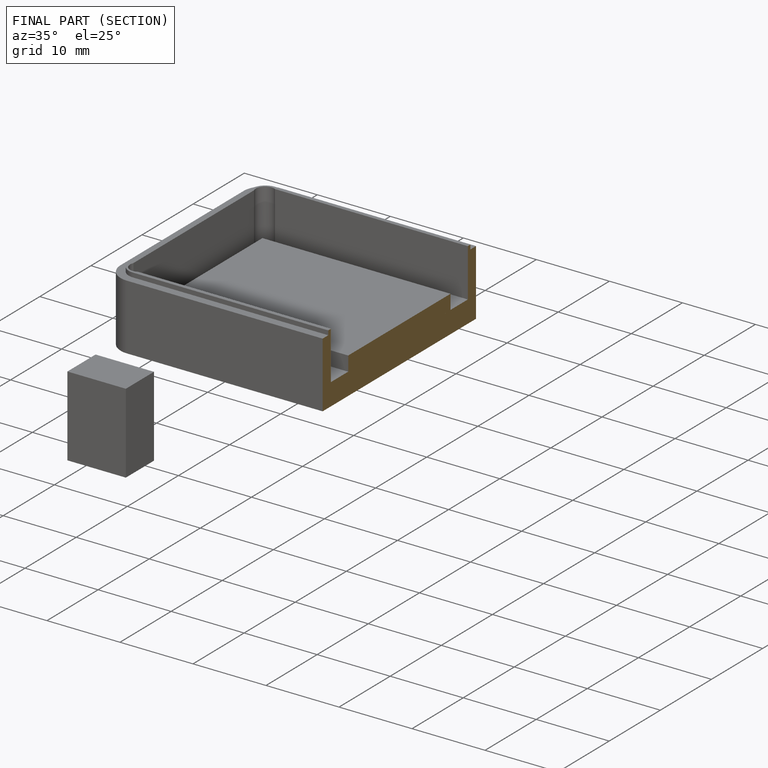
[diagram: finished part — half-section view (interior)]
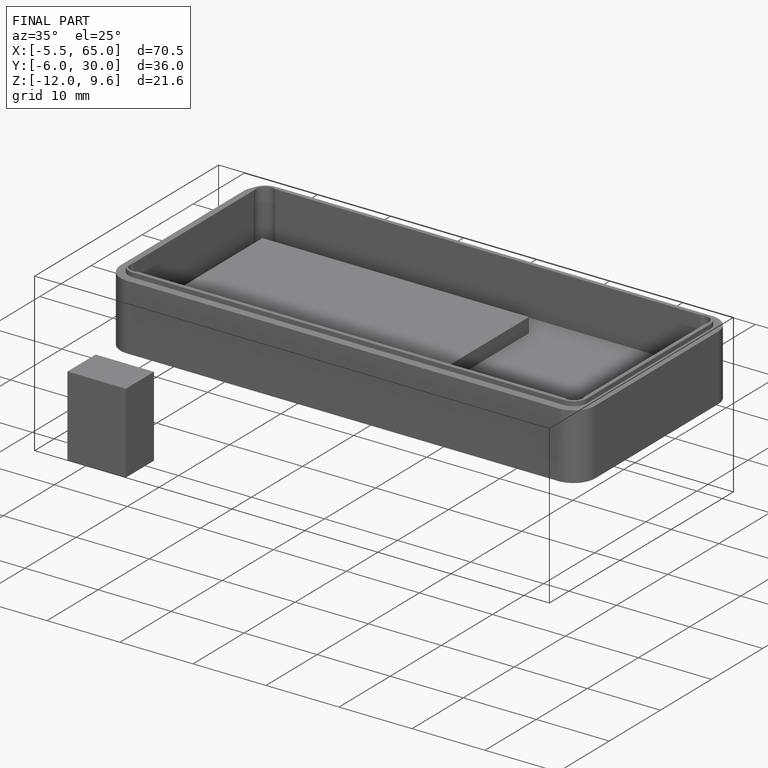
[diagram: finished part — iso view with bounding-box wireframe]
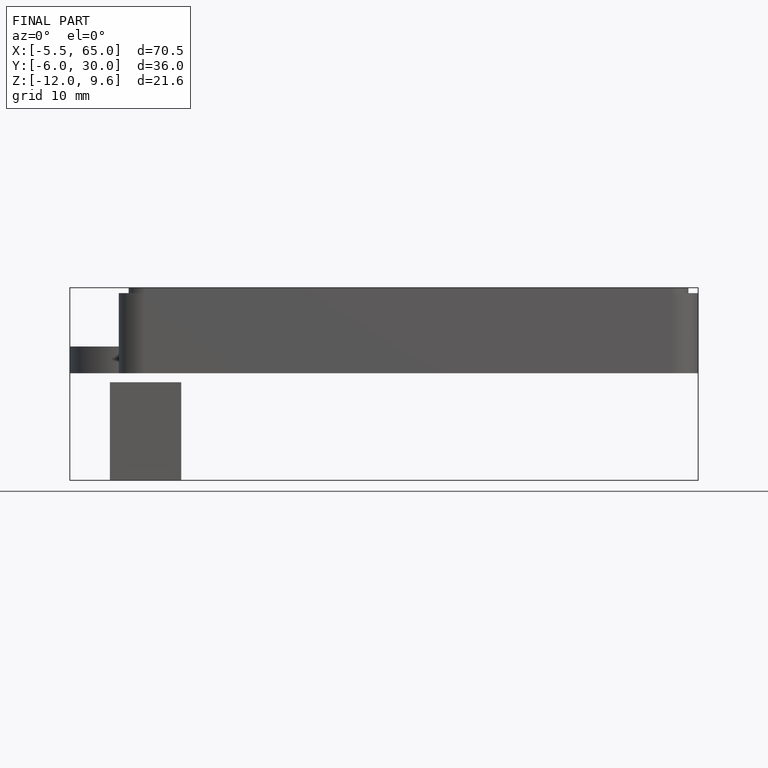
[diagram: finished part — front view with bounding-box wireframe]
